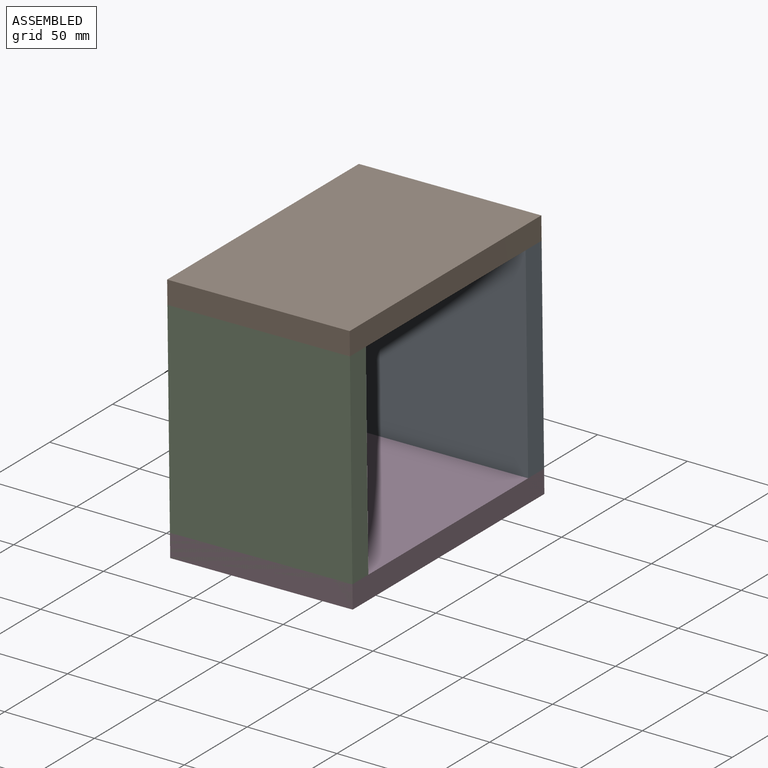
[diagram: assembled view]
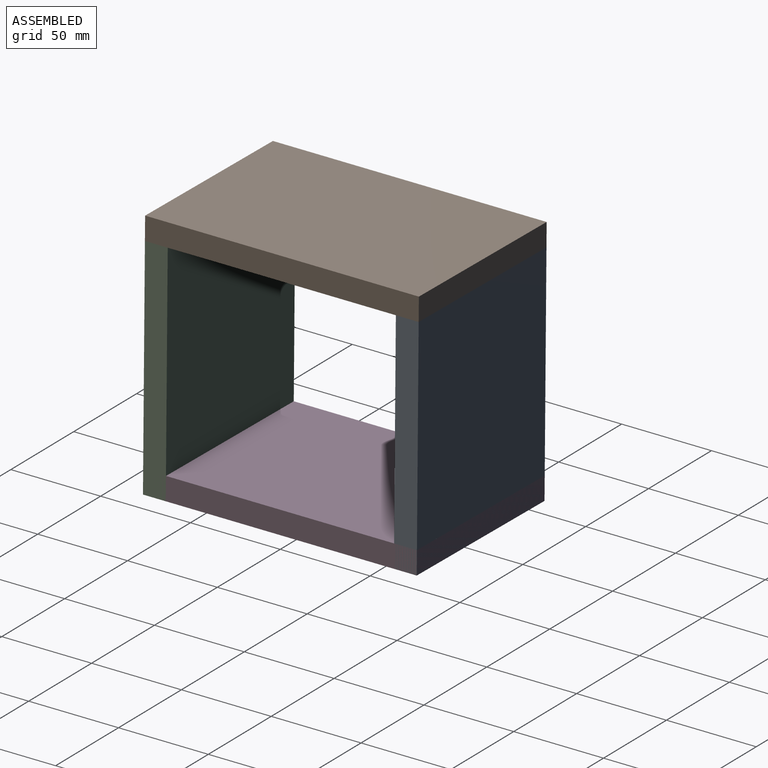
[diagram: assembled view, second angle]
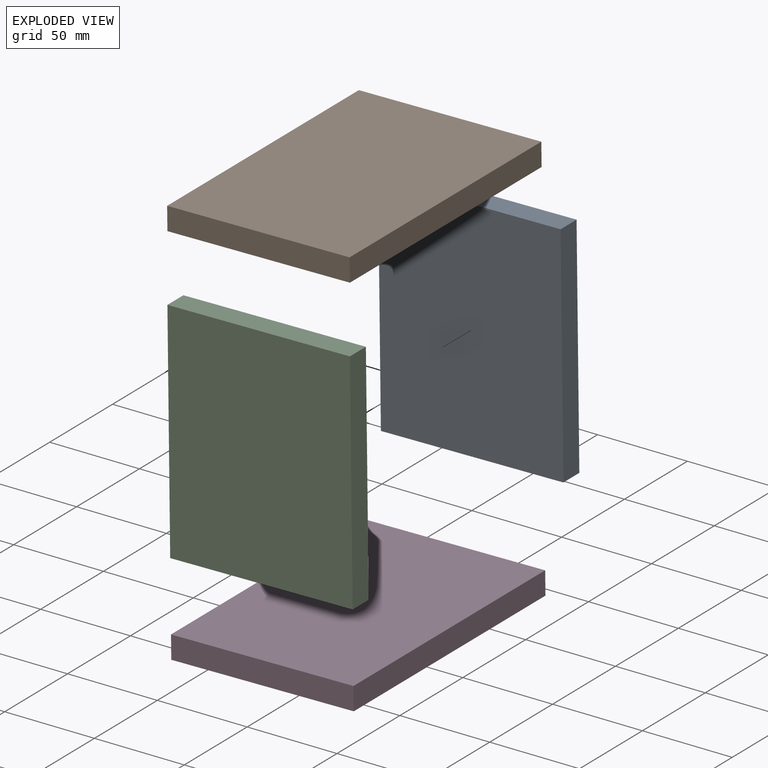
[diagram: exploded view]
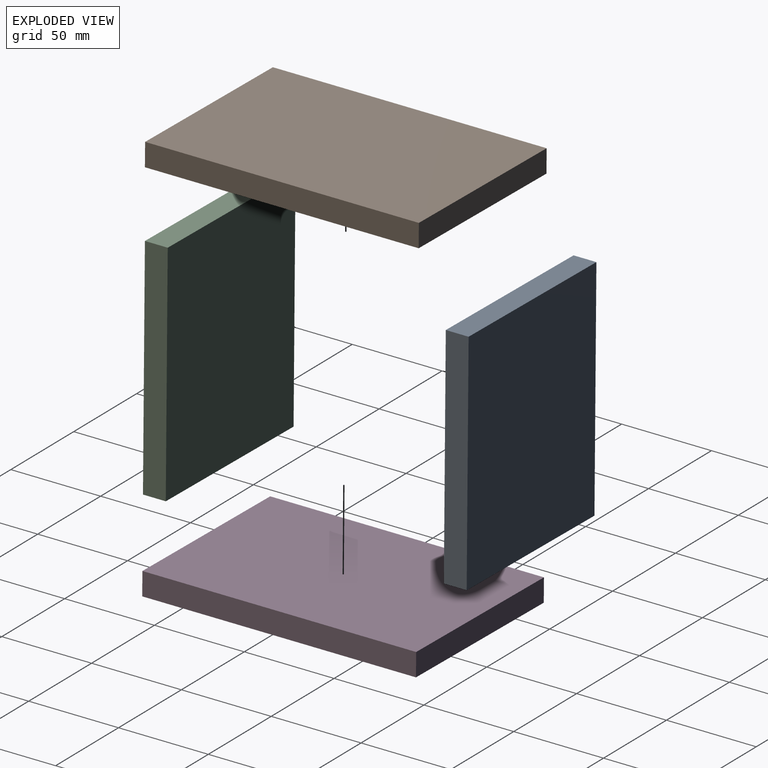
[diagram: exploded view, second angle]
ASSEMBLY  parts=4 mates=3
PART A: 6 faces, bbox 127x12.7x101.6 mm
  f0: plane 101.6x12.7mm, normal (1,0,0), area 1290.3mm2, adj f1,f3,f4,f5
  f1: plane 127x12.7mm, normal (0,0,1), area 1612.9mm2, adj f0,f2,f4,f5
  f2: plane 101.6x12.7mm, normal (-1,0,0), area 1290.3mm2, adj f1,f3,f4,f5
  f3: plane 127x12.7mm, normal (0,0,-1), area 1612.9mm2, adj f0,f2,f4,f5
  f4: plane 127x101.6mm, normal (0,-1,0), area 12903.2mm2, adj f0,f1,f2,f3
  f5: plane 127x101.6mm, normal (0,1,0), area 12903.2mm2, adj f0,f1,f2,f3
PART B: 6 faces, bbox 101.6x152.4x12.7 mm
  f0: plane 101.6x12.7mm, normal (0,-1,0), area 1290.3mm2, adj f1,f3,f4,f5
  f1: plane 152.4x12.7mm, normal (1,0,0), area 1935.5mm2, adj f0,f2,f4,f5
  f2: plane 101.6x12.7mm, normal (0,1,0), area 1290.3mm2, adj f1,f3,f4,f5
  f3: plane 152.4x12.7mm, normal (-1,0,0), area 1935.5mm2, adj f0,f2,f4,f5
  f4: plane 152.4x101.6mm, normal (0,0,1), area 15483.8mm2, adj f0,f1,f2,f3
  f5: plane 152.4x101.6mm, normal (0,0,-1), area 15483.8mm2, adj f0,f1,f2,f3
PART C: same geometry as A
PART D: same geometry as B
PLACE A rot(axis=(0,1,0),89.3deg) t=(33.81,85.79,63.98)mm
PLACE B rot(axis=(0,-1,0),0.7deg) t=(33.04,9.59,127.48)mm
PLACE C rot(axis=(0,-1,0),90.7deg) t=(33.81,-53.91,63.98)mm
PLACE D rot(axis=(0,-1,0),0.7deg) t=(34.59,9.59,0.49)mm
MATE fastened D.f5 <-> C.f2  axis (0.01,0,-1) through (85.38,-66.61,1.11)mm
MATE fastened B.f0 <-> C.f4  axis (0,-1,0) through (83.83,-66.61,128.1)mm
MATE fastened D.f2 <-> A.f5  axis (0,1,0) through (85.38,85.79,1.11)mm
